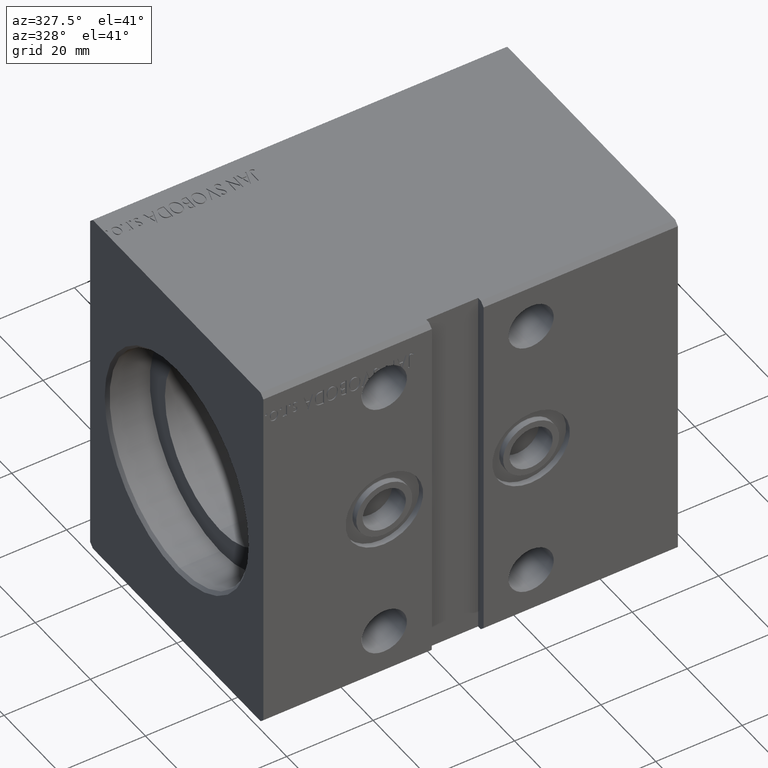
[diagram: clean part render]
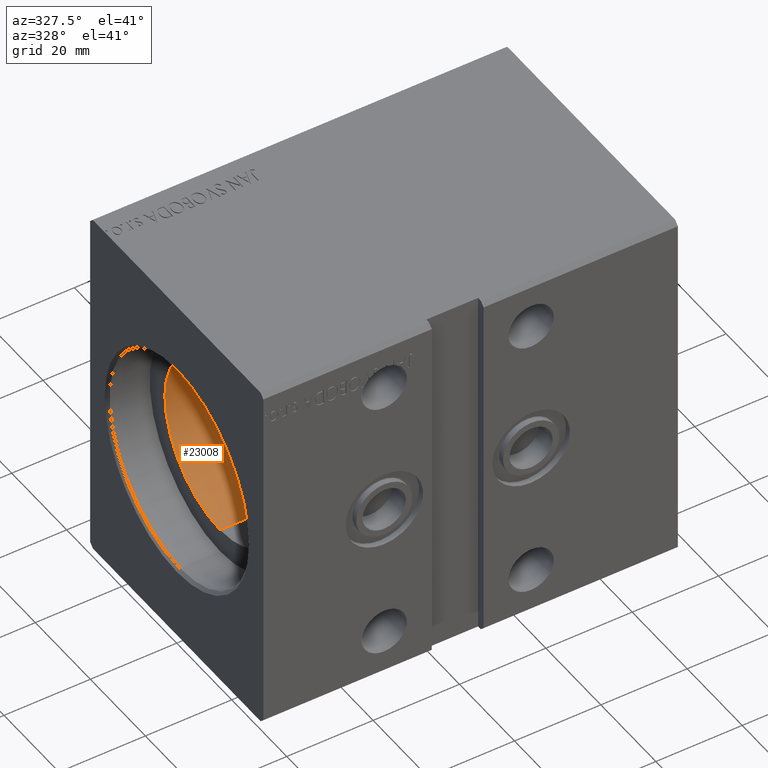
[diagram: same view with one face highlighted and labeled with its STEP entity id]
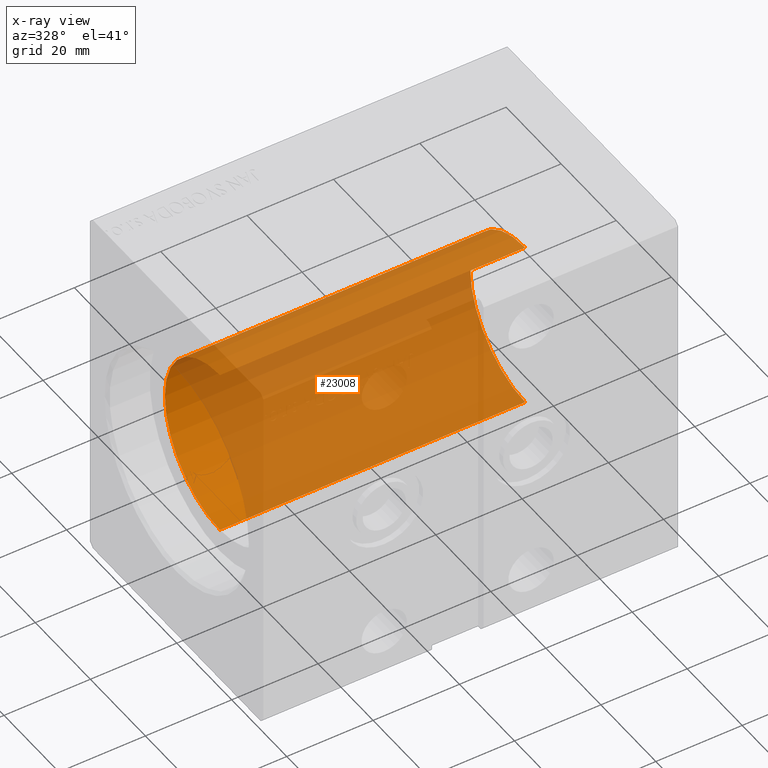
[diagram: x-ray of the same camera — body ghosted, the highlighted face saturated]
A machine part, auxiliary view. The second image highlights one B-rep face of the part: STEP entity #23008.
The next image is the same camera in x-ray: the body ghosted, the highlighted face saturated — about 89% of this face is hidden behind the body in this view.
In plain terms, the highlighted cylindrical surface (partial cylindrical patch) has radius 20 mm, axis along (-1, -0, -0).
Its self-contained STEP definition (entity closure, byte-faithful):
#1023 = CYLINDRICAL_SURFACE ( 'NONE', #17595, 20.00000000000000000 ) ;
#1942 = EDGE_CURVE ( 'NONE', #2657, #36730, #39573, .T. ) ;
#2657 = VERTEX_POINT ( 'NONE', #36751 ) ;
#3507 = DIRECTION ( 'NONE',  ( -1.000000000000000000, -0.000000000000000000, -0.000000000000000000 ) ) ;
#3870 = AXIS2_PLACEMENT_3D ( 'NONE', #5186, #17717, #30268 ) ;
#5186 = CARTESIAN_POINT ( 'NONE',  ( 9.999999999999994671, 0.000000000000000000, 0.000000000000000000 ) ) ;
#9878 = ORIENTED_EDGE ( 'NONE', *, *, #35649, .T. ) ;
#11077 = VECTOR ( 'NONE', #11539, 1000.000000000000000 ) ;
#11539 = DIRECTION ( 'NONE',  ( -1.000000000000000000, -0.000000000000000000, -0.000000000000000000 ) ) ;
#12261 = CARTESIAN_POINT ( 'NONE',  ( 80.70000000000000284, 2.449293598294706513E-15, -20.00000000000000000 ) ) ;
#13559 = CARTESIAN_POINT ( 'NONE',  ( 80.70000000000000284, 0.000000000000000000, 0.000000000000000000 ) ) ;
#15778 = CARTESIAN_POINT ( 'NONE',  ( 9.999999999999994671, 2.449293598294706513E-15, -20.00000000000000000 ) ) ;
#16647 = FACE_OUTER_BOUND ( 'NONE', #35291, .T. ) ;
#16854 = ORIENTED_EDGE ( 'NONE', *, *, #1942, .F. ) ;
#17595 = AXIS2_PLACEMENT_3D ( 'NONE', #13559, #3507, #38043 ) ;
#17717 = DIRECTION ( 'NONE',  ( -1.000000000000000000, 0.000000000000000000, 0.000000000000000000 ) ) ;
#18229 = DIRECTION ( 'NONE',  ( -1.000000000000000000, -0.000000000000000000, -0.000000000000000000 ) ) ;
#18307 = ORIENTED_EDGE ( 'NONE', *, *, #35685, .T. ) ;
#19873 = AXIS2_PLACEMENT_3D ( 'NONE', #33242, #36943, #27483 ) ;
#20798 = CARTESIAN_POINT ( 'NONE',  ( 80.70000000000000284, 0.000000000000000000, 20.00000000000000000 ) ) ;
#21605 = CIRCLE ( 'NONE', #3870, 20.00000000000000000 ) ;
#23008 = ADVANCED_FACE ( 'NONE', ( #16647 ), #1023, .F. ) ;
#25566 = VECTOR ( 'NONE', #18229, 1000.000000000000000 ) ;
#25919 = VERTEX_POINT ( 'NONE', #30414 ) ;
#27384 = LINE ( 'NONE', #20798, #11077 ) ;
#27483 = DIRECTION ( 'NONE',  ( 0.000000000000000000, 0.000000000000000000, 1.000000000000000000 ) ) ;
#28546 = VERTEX_POINT ( 'NONE', #15778 ) ;
#30268 = DIRECTION ( 'NONE',  ( 0.000000000000000000, 0.000000000000000000, 1.000000000000000000 ) ) ;
#30414 = CARTESIAN_POINT ( 'NONE',  ( 9.999999999999994671, 0.000000000000000000, 20.00000000000000000 ) ) ;
#32719 = ORIENTED_EDGE ( 'NONE', *, *, #37399, .F. ) ;
#33242 = CARTESIAN_POINT ( 'NONE',  ( 80.70000000000000284, 0.000000000000000000, 0.000000000000000000 ) ) ;
#35291 = EDGE_LOOP ( 'NONE', ( #32719, #16854, #9878, #18307 ) ) ;
#35649 = EDGE_CURVE ( 'NONE', #2657, #25919, #27384, .T. ) ;
#35685 = EDGE_CURVE ( 'NONE', #25919, #28546, #21605, .T. ) ;
#36730 = VERTEX_POINT ( 'NONE', #39731 ) ;
#36751 = CARTESIAN_POINT ( 'NONE',  ( 80.70000000000000284, 0.000000000000000000, 20.00000000000000000 ) ) ;
#36943 = DIRECTION ( 'NONE',  ( -1.000000000000000000, 0.000000000000000000, 0.000000000000000000 ) ) ;
#37399 = EDGE_CURVE ( 'NONE', #36730, #28546, #40037, .T. ) ;
#38043 = DIRECTION ( 'NONE',  ( 0.000000000000000000, 0.000000000000000000, 1.000000000000000000 ) ) ;
#39573 = CIRCLE ( 'NONE', #19873, 20.00000000000000000 ) ;
#39731 = CARTESIAN_POINT ( 'NONE',  ( 80.70000000000000284, 2.449293598294706513E-15, -20.00000000000000000 ) ) ;
#40037 = LINE ( 'NONE', #12261, #25566 ) ;